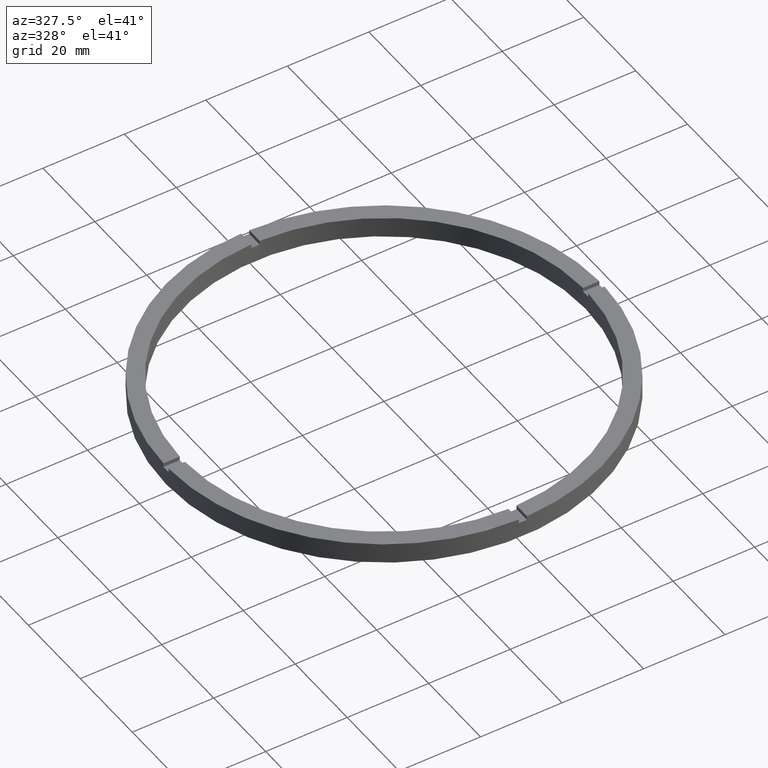
[diagram: clean part render]
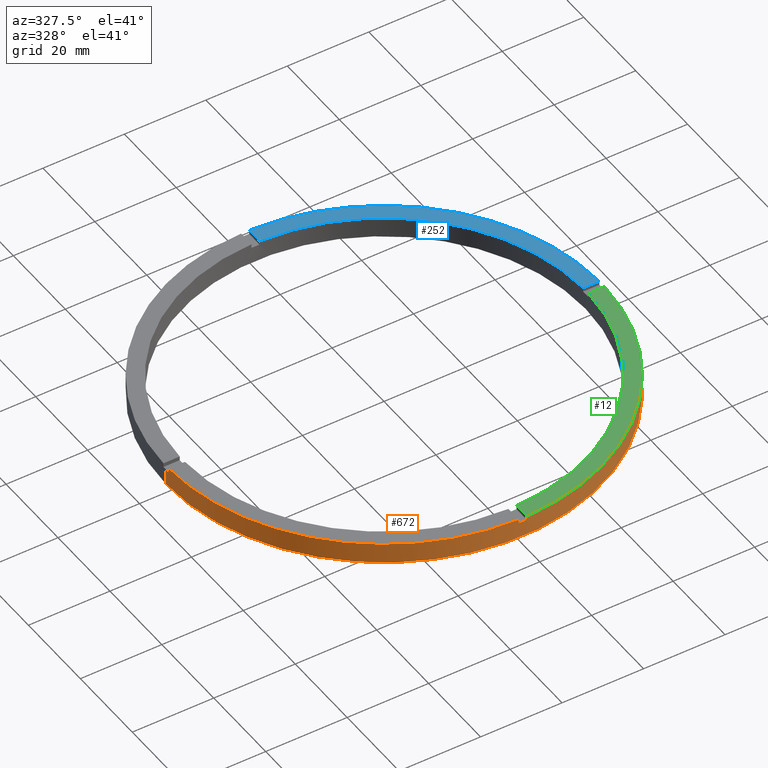
[diagram: same view with three faces highlighted in distinct colors, each labeled with its STEP entity id]
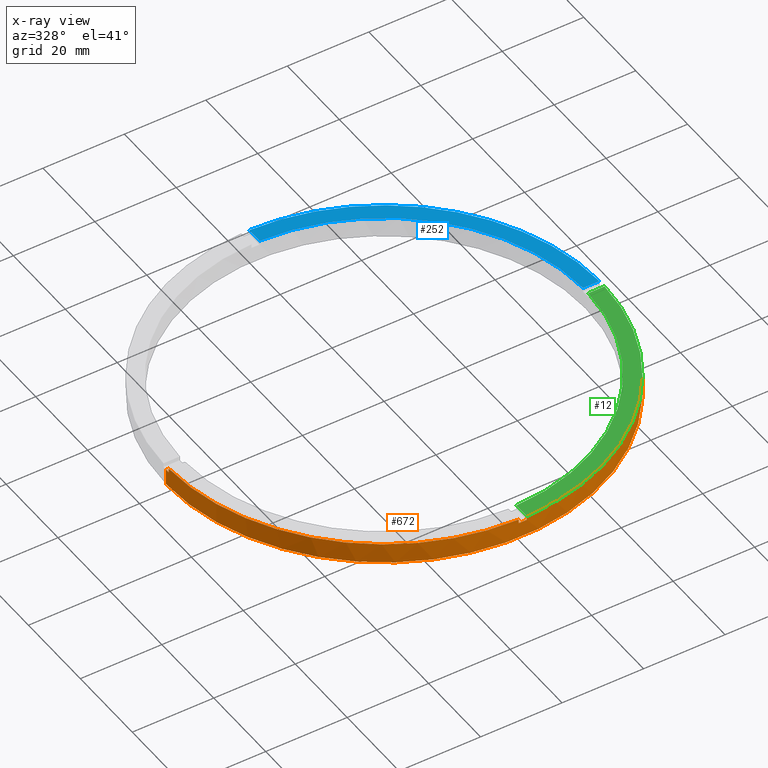
[diagram: x-ray of the same camera — body ghosted, the three highlighted faces saturated]
A machine part, auxiliary view with three faces highlighted in distinct colors.
The next image is the same camera in x-ray (body ghosted, the three faces saturated) — at least one of them is partly hidden behind the body in this view.
Their STEP definitions:

[orange] entity #672 — the highlighted cylindrical surface (partial cylindrical patch) has radius 53.5 mm, axis along (-0, -0, -1).
#13 = CARTESIAN_POINT ( 'NONE',  ( -1.000000000000155875, -53.49065338916696533, 5.000000000000000000 ) ) ;
#26 = EDGE_CURVE ( 'NONE', #471, #236, #337, .T. ) ;
#44 = DIRECTION ( 'NONE',  ( 1.000000000000000000, 0.000000000000000000, 0.000000000000000000 ) ) ;
#47 = CARTESIAN_POINT ( 'NONE',  ( 0.000000000000000000, 0.000000000000000000, 0.000000000000000000 ) ) ;
#63 = DIRECTION ( 'NONE',  ( -1.000000000000000000, 0.000000000000000000, 0.000000000000000000 ) ) ;
#72 = LINE ( 'NONE', #639, #607 ) ;
#75 = CARTESIAN_POINT ( 'NONE',  ( -53.50000000000000000, 0.000000000000000000, 5.000000000000000000 ) ) ;
#78 = EDGE_LOOP ( 'NONE', ( #164, #410, #140, #735, #465, #755, #174, #472, #219, #694, #455, #750 ) ) ;
#87 = EDGE_CURVE ( 'NONE', #200, #754, #625, .T. ) ;
#88 = CIRCLE ( 'NONE', #242, 53.50000000000000000 ) ;
#100 = CARTESIAN_POINT ( 'NONE',  ( 0.000000000000000000, 0.000000000000000000, 5.000000000000000000 ) ) ;
#108 = DIRECTION ( 'NONE',  ( 0.000000000000000000, 0.000000000000000000, 1.000000000000000000 ) ) ;
#110 = CARTESIAN_POINT ( 'NONE',  ( 53.49065338916696533, -1.000000000000154543, 5.000000000000000000 ) ) ;
#117 = LINE ( 'NONE', #521, #124 ) ;
#119 = CIRCLE ( 'NONE', #579, 53.50000000000000000 ) ;
#124 = VECTOR ( 'NONE', #528, 1000.000000000000000 ) ;
#128 = AXIS2_PLACEMENT_3D ( 'NONE', #47, #581, #656 ) ;
#133 = CIRCLE ( 'NONE', #443, 53.50000000000000000 ) ;
#136 = CIRCLE ( 'NONE', #128, 53.50000000000000000 ) ;
#139 = VECTOR ( 'NONE', #516, 1000.000000000000000 ) ;
#140 = ORIENTED_EDGE ( 'NONE', *, *, #440, .T. ) ;
#144 = FACE_OUTER_BOUND ( 'NONE', #78, .T. ) ;
#154 = VERTEX_POINT ( 'NONE', #682 ) ;
#164 = ORIENTED_EDGE ( 'NONE', *, *, #277, .F. ) ;
#169 = CARTESIAN_POINT ( 'NONE',  ( -53.49065338916696533, -1.000000000000032641, 4.000000000000000000 ) ) ;
#170 = VERTEX_POINT ( 'NONE', #13 ) ;
#174 = ORIENTED_EDGE ( 'NONE', *, *, #475, .T. ) ;
#183 = DIRECTION ( 'NONE',  ( 0.000000000000000000, 0.000000000000000000, 1.000000000000000000 ) ) ;
#191 = DIRECTION ( 'NONE',  ( 1.000000000000000000, 0.000000000000000000, 0.000000000000000000 ) ) ;
#200 = VERTEX_POINT ( 'NONE', #646 ) ;
#201 = EDGE_CURVE ( 'NONE', #200, #715, #88, .T. ) ;
#205 = CARTESIAN_POINT ( 'NONE',  ( 0.000000000000000000, 0.000000000000000000, 5.000000000000000000 ) ) ;
#213 = CARTESIAN_POINT ( 'NONE',  ( -53.50000000000000000, 0.000000000000000000, 4.000000000000000000 ) ) ;
#219 = ORIENTED_EDGE ( 'NONE', *, *, #550, .T. ) ;
#235 = CARTESIAN_POINT ( 'NONE',  ( 53.49065338916696533, -1.000000000000154543, 4.000000000000000000 ) ) ;
#236 = VERTEX_POINT ( 'NONE', #284 ) ;
#241 = DIRECTION ( 'NONE',  ( -0.000000000000000000, -0.000000000000000000, -1.000000000000000000 ) ) ;
#242 = AXIS2_PLACEMENT_3D ( 'NONE', #100, #183, #44 ) ;
#243 = DIRECTION ( 'NONE',  ( 0.000000000000000000, 0.000000000000000000, 1.000000000000000000 ) ) ;
#244 = CARTESIAN_POINT ( 'NONE',  ( -1.000000000000155875, -53.49065338916696533, 4.000000000000000000 ) ) ;
#247 = AXIS2_PLACEMENT_3D ( 'NONE', #205, #339, #191 ) ;
#259 = CARTESIAN_POINT ( 'NONE',  ( 53.50000000000000000, 6.551860375438339893E-15, 0.000000000000000000 ) ) ;
#277 = EDGE_CURVE ( 'NONE', #236, #483, #72, .T. ) ;
#278 = AXIS2_PLACEMENT_3D ( 'NONE', #313, #760, #63 ) ;
#284 = CARTESIAN_POINT ( 'NONE',  ( 53.50000000000000000, 6.551860375438339893E-15, 4.000000000000000000 ) ) ;
#313 = CARTESIAN_POINT ( 'NONE',  ( 0.000000000000000000, 0.000000000000000000, 5.000000000000000000 ) ) ;
#337 = CIRCLE ( 'NONE', #758, 53.50000000000000000 ) ;
#339 = DIRECTION ( 'NONE',  ( 0.000000000000000000, 0.000000000000000000, 1.000000000000000000 ) ) ;
#358 = DIRECTION ( 'NONE',  ( 1.000000000000000000, 0.000000000000000000, 0.000000000000000000 ) ) ;
#362 = DIRECTION ( 'NONE',  ( -0.000000000000000000, 0.000000000000000000, 1.000000000000000000 ) ) ;
#377 = DIRECTION ( 'NONE',  ( -0.000000000000000000, -0.000000000000000000, -1.000000000000000000 ) ) ;
#390 = LINE ( 'NONE', #745, #628 ) ;
#399 = LINE ( 'NONE', #718, #139 ) ;
#410 = ORIENTED_EDGE ( 'NONE', *, *, #26, .F. ) ;
#432 = VERTEX_POINT ( 'NONE', #169 ) ;
#436 = EDGE_CURVE ( 'NONE', #709, #747, #660, .T. ) ;
#440 = EDGE_CURVE ( 'NONE', #471, #715, #399, .T. ) ;
#443 = AXIS2_PLACEMENT_3D ( 'NONE', #453, #362, #588 ) ;
#453 = CARTESIAN_POINT ( 'NONE',  ( 0.000000000000000000, 0.000000000000000000, 4.000000000000000000 ) ) ;
#455 = ORIENTED_EDGE ( 'NONE', *, *, #436, .T. ) ;
#465 = ORIENTED_EDGE ( 'NONE', *, *, #87, .T. ) ;
#471 = VERTEX_POINT ( 'NONE', #235 ) ;
#472 = ORIENTED_EDGE ( 'NONE', *, *, #490, .F. ) ;
#475 = EDGE_CURVE ( 'NONE', #498, #170, #390, .T. ) ;
#483 = VERTEX_POINT ( 'NONE', #259 ) ;
#490 = EDGE_CURVE ( 'NONE', #154, #170, #627, .T. ) ;
#498 = VERTEX_POINT ( 'NONE', #244 ) ;
#510 = EDGE_CURVE ( 'NONE', #747, #483, #136, .T. ) ;
#516 = DIRECTION ( 'NONE',  ( 0.000000000000000000, 0.000000000000000000, 1.000000000000000000 ) ) ;
#521 = CARTESIAN_POINT ( 'NONE',  ( -53.49065338916696533, -1.000000000000032641, 5.000000000000000000 ) ) ;
#523 = DIRECTION ( 'NONE',  ( -0.000000000000000000, -0.000000000000000000, -1.000000000000000000 ) ) ;
#528 = DIRECTION ( 'NONE',  ( -0.000000000000000000, -0.000000000000000000, -1.000000000000000000 ) ) ;
#538 = CARTESIAN_POINT ( 'NONE',  ( 0.9999999999998441247, -53.49065338916697243, 5.000000000000000000 ) ) ;
#544 = CARTESIAN_POINT ( 'NONE',  ( 0.9999999999998441247, -53.49065338916697243, 4.000000000000000000 ) ) ;
#550 = EDGE_CURVE ( 'NONE', #154, #432, #117, .T. ) ;
#579 = AXIS2_PLACEMENT_3D ( 'NONE', #717, #243, #580 ) ;
#580 = DIRECTION ( 'NONE',  ( 1.000000000000000000, 0.000000000000000000, 0.000000000000000000 ) ) ;
#581 = DIRECTION ( 'NONE',  ( 0.000000000000000000, 0.000000000000000000, 1.000000000000000000 ) ) ;
#583 = EDGE_CURVE ( 'NONE', #709, #432, #119, .T. ) ;
#585 = CARTESIAN_POINT ( 'NONE',  ( 0.000000000000000000, 0.000000000000000000, 4.000000000000000000 ) ) ;
#588 = DIRECTION ( 'NONE',  ( 1.000000000000000000, 0.000000000000000000, 0.000000000000000000 ) ) ;
#593 = CARTESIAN_POINT ( 'NONE',  ( -53.50000000000000000, 0.000000000000000000, 0.000000000000000000 ) ) ;
#607 = VECTOR ( 'NONE', #241, 1000.000000000000000 ) ;
#622 = VECTOR ( 'NONE', #523, 1000.000000000000000 ) ;
#625 = LINE ( 'NONE', #538, #622 ) ;
#627 = CIRCLE ( 'NONE', #247, 53.50000000000000000 ) ;
#628 = VECTOR ( 'NONE', #663, 1000.000000000000000 ) ;
#632 = CYLINDRICAL_SURFACE ( 'NONE', #278, 53.50000000000000000 ) ;
#639 = CARTESIAN_POINT ( 'NONE',  ( 53.50000000000000000, 6.551860375438339893E-15, 5.000000000000000000 ) ) ;
#643 = VECTOR ( 'NONE', #377, 1000.000000000000000 ) ;
#646 = CARTESIAN_POINT ( 'NONE',  ( 0.9999999999998441247, -53.49065338916697243, 5.000000000000000000 ) ) ;
#656 = DIRECTION ( 'NONE',  ( 1.000000000000000000, 0.000000000000000000, 0.000000000000000000 ) ) ;
#660 = LINE ( 'NONE', #75, #643 ) ;
#663 = DIRECTION ( 'NONE',  ( 0.000000000000000000, 0.000000000000000000, 1.000000000000000000 ) ) ;
#670 = EDGE_CURVE ( 'NONE', #498, #754, #133, .T. ) ;
#672 = ADVANCED_FACE ( 'NONE', ( #144 ), #632, .T. ) ;
#682 = CARTESIAN_POINT ( 'NONE',  ( -53.49065338916696533, -1.000000000000032641, 5.000000000000000000 ) ) ;
#694 = ORIENTED_EDGE ( 'NONE', *, *, #583, .F. ) ;
#709 = VERTEX_POINT ( 'NONE', #213 ) ;
#715 = VERTEX_POINT ( 'NONE', #110 ) ;
#717 = CARTESIAN_POINT ( 'NONE',  ( 0.000000000000000000, 0.000000000000000000, 4.000000000000000000 ) ) ;
#718 = CARTESIAN_POINT ( 'NONE',  ( 53.49065338916696533, -1.000000000000154543, 5.000000000000000000 ) ) ;
#735 = ORIENTED_EDGE ( 'NONE', *, *, #201, .F. ) ;
#745 = CARTESIAN_POINT ( 'NONE',  ( -1.000000000000155875, -53.49065338916696533, 5.000000000000000000 ) ) ;
#747 = VERTEX_POINT ( 'NONE', #593 ) ;
#750 = ORIENTED_EDGE ( 'NONE', *, *, #510, .T. ) ;
#754 = VERTEX_POINT ( 'NONE', #544 ) ;
#755 = ORIENTED_EDGE ( 'NONE', *, *, #670, .F. ) ;
#758 = AXIS2_PLACEMENT_3D ( 'NONE', #585, #108, #358 ) ;
#760 = DIRECTION ( 'NONE',  ( -0.000000000000000000, -0.000000000000000000, -1.000000000000000000 ) ) ;

[blue] entity #252 — the highlighted planar face has unit normal (0, 0, 1).
#5 = CARTESIAN_POINT ( 'NONE',  ( 0.000000000000000000, 0.000000000000000000, 5.000000000000000000 ) ) ;
#8 = CARTESIAN_POINT ( 'NONE',  ( 49.48989795907849043, 0.9999999999998452349, 5.000000000000000000 ) ) ;
#14 = AXIS2_PLACEMENT_3D ( 'NONE', #344, #509, #118 ) ;
#19 = DIRECTION ( 'NONE',  ( -1.000000000000000000, -6.505213034913025371E-17, -0.000000000000000000 ) ) ;
#30 = AXIS2_PLACEMENT_3D ( 'NONE', #5, #204, #210 ) ;
#53 = CARTESIAN_POINT ( 'NONE',  ( 43.49999999999999289, 0.9999999999998447908, 5.000000000000000000 ) ) ;
#55 = DIRECTION ( 'NONE',  ( 0.000000000000000000, 0.000000000000000000, 1.000000000000000000 ) ) ;
#113 = VECTOR ( 'NONE', #19, 1000.000000000000000 ) ;
#118 = DIRECTION ( 'NONE',  ( 1.000000000000000000, 0.000000000000000000, 0.000000000000000000 ) ) ;
#138 = VERTEX_POINT ( 'NONE', #261 ) ;
#194 = ORIENTED_EDGE ( 'NONE', *, *, #729, .T. ) ;
#204 = DIRECTION ( 'NONE',  ( 0.000000000000000000, 0.000000000000000000, 1.000000000000000000 ) ) ;
#210 = DIRECTION ( 'NONE',  ( 1.000000000000000000, 0.000000000000000000, 0.000000000000000000 ) ) ;
#240 = CARTESIAN_POINT ( 'NONE',  ( 0.9999999999999726885, 53.49065338916696533, 5.000000000000000000 ) ) ;
#250 = AXIS2_PLACEMENT_3D ( 'NONE', #287, #55, #282 ) ;
#252 = ADVANCED_FACE ( 'NONE', ( #597 ), #430, .T. ) ;
#261 = CARTESIAN_POINT ( 'NONE',  ( 0.9999999999999726885, 49.48989795907849043, 5.000000000000000000 ) ) ;
#282 = DIRECTION ( 'NONE',  ( 1.000000000000000000, 0.000000000000000000, -0.000000000000000000 ) ) ;
#287 = CARTESIAN_POINT ( 'NONE',  ( 0.000000000000000000, 0.000000000000000000, 5.000000000000000000 ) ) ;
#295 = EDGE_CURVE ( 'NONE', #138, #558, #626, .T. ) ;
#344 = CARTESIAN_POINT ( 'NONE',  ( 0.000000000000000000, 0.000000000000000000, 5.000000000000000000 ) ) ;
#430 = PLANE ( 'NONE',  #250 ) ;
#469 = CARTESIAN_POINT ( 'NONE',  ( 0.9999999999999726885, 43.50000000000000000, 5.000000000000000000 ) ) ;
#479 = ORIENTED_EDGE ( 'NONE', *, *, #733, .F. ) ;
#482 = DIRECTION ( 'NONE',  ( 0.000000000000000000, 1.000000000000000000, 0.000000000000000000 ) ) ;
#500 = VERTEX_POINT ( 'NONE', #532 ) ;
#509 = DIRECTION ( 'NONE',  ( 0.000000000000000000, 0.000000000000000000, 1.000000000000000000 ) ) ;
#532 = CARTESIAN_POINT ( 'NONE',  ( 53.49065338916697243, 0.9999999999998454570, 5.000000000000000000 ) ) ;
#558 = VERTEX_POINT ( 'NONE', #240 ) ;
#597 = FACE_OUTER_BOUND ( 'NONE', #702, .T. ) ;
#613 = VECTOR ( 'NONE', #482, 1000.000000000000000 ) ;
#626 = LINE ( 'NONE', #469, #613 ) ;
#634 = LINE ( 'NONE', #53, #113 ) ;
#637 = CIRCLE ( 'NONE', #30, 53.50000000000000000 ) ;
#640 = CIRCLE ( 'NONE', #14, 49.50000000000000711 ) ;
#699 = VERTEX_POINT ( 'NONE', #8 ) ;
#702 = EDGE_LOOP ( 'NONE', ( #728, #479, #720, #194 ) ) ;
#713 = EDGE_CURVE ( 'NONE', #500, #699, #634, .T. ) ;
#720 = ORIENTED_EDGE ( 'NONE', *, *, #713, .F. ) ;
#728 = ORIENTED_EDGE ( 'NONE', *, *, #295, .F. ) ;
#729 = EDGE_CURVE ( 'NONE', #500, #558, #637, .T. ) ;
#733 = EDGE_CURVE ( 'NONE', #699, #138, #640, .T. ) ;

[green] entity #12 — the highlighted planar face has unit normal (0, 0, 1).
#2 = AXIS2_PLACEMENT_3D ( 'NONE', #96, #578, #4 ) ;
#4 = DIRECTION ( 'NONE',  ( 1.000000000000000000, 0.000000000000000000, -0.000000000000000000 ) ) ;
#12 = ADVANCED_FACE ( 'NONE', ( #93 ), #748, .T. ) ;
#44 = DIRECTION ( 'NONE',  ( 1.000000000000000000, 0.000000000000000000, 0.000000000000000000 ) ) ;
#73 = AXIS2_PLACEMENT_3D ( 'NONE', #543, #761, #767 ) ;
#88 = CIRCLE ( 'NONE', #242, 53.50000000000000000 ) ;
#90 = EDGE_CURVE ( 'NONE', #177, #715, #616, .T. ) ;
#93 = FACE_OUTER_BOUND ( 'NONE', #711, .T. ) ;
#96 = CARTESIAN_POINT ( 'NONE',  ( 0.000000000000000000, 0.000000000000000000, 5.000000000000000000 ) ) ;
#100 = CARTESIAN_POINT ( 'NONE',  ( 0.000000000000000000, 0.000000000000000000, 5.000000000000000000 ) ) ;
#110 = CARTESIAN_POINT ( 'NONE',  ( 53.49065338916696533, -1.000000000000154543, 5.000000000000000000 ) ) ;
#115 = LINE ( 'NONE', #537, #395 ) ;
#122 = EDGE_CURVE ( 'NONE', #239, #177, #343, .T. ) ;
#177 = VERTEX_POINT ( 'NONE', #458 ) ;
#183 = DIRECTION ( 'NONE',  ( 0.000000000000000000, 0.000000000000000000, 1.000000000000000000 ) ) ;
#186 = ORIENTED_EDGE ( 'NONE', *, *, #90, .F. ) ;
#200 = VERTEX_POINT ( 'NONE', #646 ) ;
#201 = EDGE_CURVE ( 'NONE', #200, #715, #88, .T. ) ;
#211 = ORIENTED_EDGE ( 'NONE', *, *, #201, .T. ) ;
#239 = VERTEX_POINT ( 'NONE', #542 ) ;
#242 = AXIS2_PLACEMENT_3D ( 'NONE', #100, #183, #44 ) ;
#343 = CIRCLE ( 'NONE', #73, 49.50000000000000711 ) ;
#395 = VECTOR ( 'NONE', #614, 1000.000000000000000 ) ;
#458 = CARTESIAN_POINT ( 'NONE',  ( 49.48989795907849043, -1.000000000000154765, 5.000000000000000000 ) ) ;
#459 = ORIENTED_EDGE ( 'NONE', *, *, #621, .F. ) ;
#537 = CARTESIAN_POINT ( 'NONE',  ( 0.9999999999998427924, -43.50000000000017764, 5.000000000000000000 ) ) ;
#542 = CARTESIAN_POINT ( 'NONE',  ( 0.9999999999998436806, -49.48989795907849043, 5.000000000000000000 ) ) ;
#543 = CARTESIAN_POINT ( 'NONE',  ( 0.000000000000000000, 0.000000000000000000, 5.000000000000000000 ) ) ;
#578 = DIRECTION ( 'NONE',  ( 0.000000000000000000, 0.000000000000000000, 1.000000000000000000 ) ) ;
#614 = DIRECTION ( 'NONE',  ( -1.301042606982605074E-16, 1.000000000000000000, -0.000000000000000000 ) ) ;
#616 = LINE ( 'NONE', #641, #618 ) ;
#618 = VECTOR ( 'NONE', #736, 1000.000000000000000 ) ;
#621 = EDGE_CURVE ( 'NONE', #200, #239, #115, .T. ) ;
#641 = CARTESIAN_POINT ( 'NONE',  ( 43.49999999999999289, -1.000000000000155209, 5.000000000000000000 ) ) ;
#646 = CARTESIAN_POINT ( 'NONE',  ( 0.9999999999998441247, -53.49065338916697243, 5.000000000000000000 ) ) ;
#661 = ORIENTED_EDGE ( 'NONE', *, *, #122, .F. ) ;
#711 = EDGE_LOOP ( 'NONE', ( #186, #661, #459, #211 ) ) ;
#715 = VERTEX_POINT ( 'NONE', #110 ) ;
#736 = DIRECTION ( 'NONE',  ( 1.000000000000000000, 6.505213034913025371E-17, 0.000000000000000000 ) ) ;
#748 = PLANE ( 'NONE',  #2 ) ;
#761 = DIRECTION ( 'NONE',  ( 0.000000000000000000, 0.000000000000000000, 1.000000000000000000 ) ) ;
#767 = DIRECTION ( 'NONE',  ( 1.000000000000000000, 0.000000000000000000, 0.000000000000000000 ) ) ;